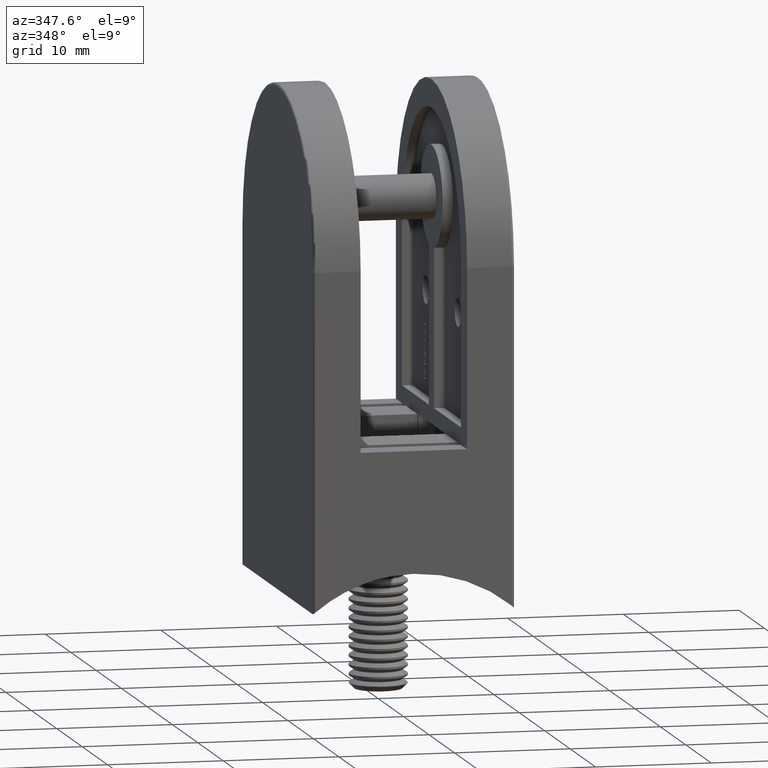
[diagram: clean part render]
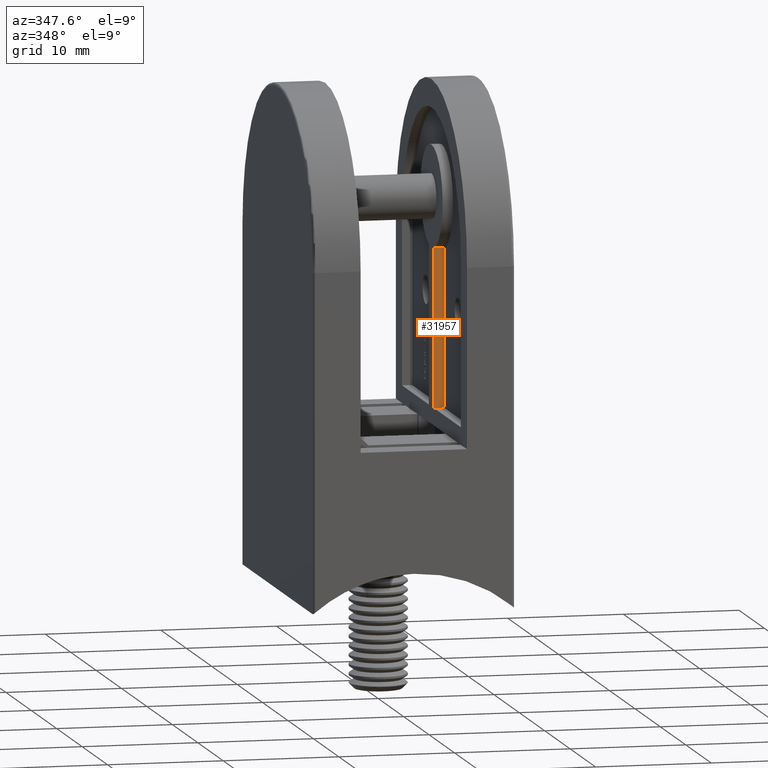
[diagram: same view with one face highlighted and labeled with its STEP entity id]
A machine part, auxiliary view. The second image highlights one B-rep face of the part: STEP entity #31957.
In plain terms, the highlighted planar face has unit normal (-0, 1, 0).
Its self-contained STEP definition (entity closure, byte-faithful):
#1636 = EDGE_LOOP ( 'NONE', ( #52316, #3578, #56766, #5735 ) ) ;
#3578 = ORIENTED_EDGE ( 'NONE', *, *, #44431, .T. ) ;
#3741 = CARTESIAN_POINT ( 'NONE',  ( 28.16657433038612600, 1.000000000000000000, 11.99999999999998900 ) ) ;
#5735 = ORIENTED_EDGE ( 'NONE', *, *, #7222, .F. ) ;
#7222 = EDGE_CURVE ( 'NONE', #29208, #56091, #32801, .T. ) ;
#7700 = DIRECTION ( 'NONE',  ( -1.000000000000000000, -0.0000000000000000000, -0.0000000000000000000 ) ) ;
#7738 = LINE ( 'NONE', #25091, #12644 ) ;
#9393 = VECTOR ( 'NONE', #7700, 1000.000000000000000 ) ;
#11877 = DIRECTION ( 'NONE',  ( 0.0000000000000000000, -1.264823475192493500E-016, 1.000000000000000000 ) ) ;
#12644 = VECTOR ( 'NONE', #11877, 1000.000000000000000 ) ;
#12697 = CARTESIAN_POINT ( 'NONE',  ( 28.16657433038612600, 1.000000000000000000, 11.99999999999998900 ) ) ;
#14976 = CARTESIAN_POINT ( 'NONE',  ( 3.199999999999999700, 1.000000000000000000, 11.99999999999998900 ) ) ;
#18020 = DIRECTION ( 'NONE',  ( 0.0000000000000000000, 1.264823475192493500E-016, -1.000000000000000000 ) ) ;
#20256 = EDGE_CURVE ( 'NONE', #33643, #56091, #49219, .T. ) ;
#21566 = CARTESIAN_POINT ( 'NONE',  ( 28.16657433038612600, 0.9999999999999983300, 25.71514294287428700 ) ) ;
#23500 = FACE_OUTER_BOUND ( 'NONE', #1636, .T. ) ;
#24227 = DIRECTION ( 'NONE',  ( 0.0000000000000000000, -1.264823475192493500E-016, 1.000000000000000000 ) ) ;
#25091 = CARTESIAN_POINT ( 'NONE',  ( 4.099999999999999600, 1.000000000000000000, 11.99999999999998900 ) ) ;
#28722 = CARTESIAN_POINT ( 'NONE',  ( 4.100000000000006800, 1.000000000000000000, 11.99999999999998900 ) ) ;
#29208 = VERTEX_POINT ( 'NONE', #30311 ) ;
#29280 = CARTESIAN_POINT ( 'NONE',  ( 3.199999999999999700, 1.000000000000000900, 11.99999999999998900 ) ) ;
#30311 = CARTESIAN_POINT ( 'NONE',  ( 4.100000000000006800, 0.9999999999999983300, 25.71514294287428700 ) ) ;
#31286 = DIRECTION ( 'NONE',  ( 0.0000000000000000000, -1.000000000000000000, -1.264823475192493500E-016 ) ) ;
#31957 = ADVANCED_FACE ( 'NONE', ( #23500 ), #44867, .F. ) ;
#32091 = VECTOR ( 'NONE', #56976, 1000.000000000000000 ) ;
#32801 = LINE ( 'NONE', #21566, #32091 ) ;
#33406 = LINE ( 'NONE', #3741, #9393 ) ;
#33643 = VERTEX_POINT ( 'NONE', #29280 ) ;
#35819 = AXIS2_PLACEMENT_3D ( 'NONE', #12697, #31286, #18020 ) ;
#38173 = CARTESIAN_POINT ( 'NONE',  ( 3.199999999999999700, 0.9999999999999983300, 25.71514294287428700 ) ) ;
#39022 = EDGE_CURVE ( 'NONE', #49635, #29208, #7738, .T. ) ;
#41395 = VECTOR ( 'NONE', #24227, 1000.000000000000000 ) ;
#44431 = EDGE_CURVE ( 'NONE', #49635, #33643, #33406, .T. ) ;
#44867 = PLANE ( 'NONE',  #35819 ) ;
#49219 = LINE ( 'NONE', #14976, #41395 ) ;
#49635 = VERTEX_POINT ( 'NONE', #28722 ) ;
#52316 = ORIENTED_EDGE ( 'NONE', *, *, #39022, .F. ) ;
#56091 = VERTEX_POINT ( 'NONE', #38173 ) ;
#56766 = ORIENTED_EDGE ( 'NONE', *, *, #20256, .T. ) ;
#56976 = DIRECTION ( 'NONE',  ( -1.000000000000000000, -0.0000000000000000000, -0.0000000000000000000 ) ) ;